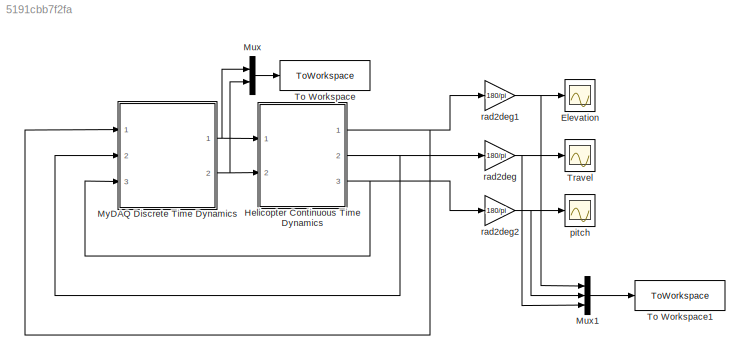
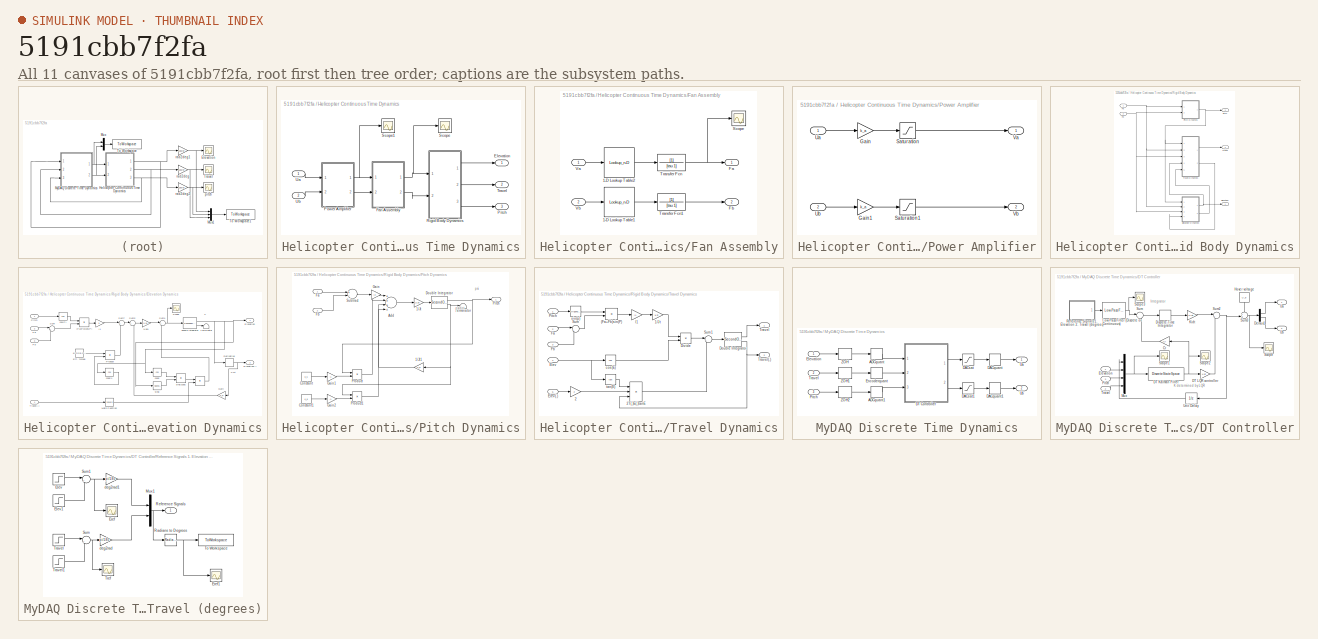
[diagram: thumbnail index - all 11 canvases of the model, root first then tree order]
MODEL slx_5191cbb7f2fa
KIND model
CONFIG AbsTol = auto
CONFIG EnableMultiTasking = on
CONFIG FixedStep = T
CONFIG MaxStep = auto
CONFIG MinStep = auto
CONFIG RelTol = 1e-5
CONFIG SampleTimeConstraint = Unconstrained
CONFIG Solver = ode1
CONFIG SolverName = ode1
CONFIG StartTime = 0.00
CONFIG StopTime = 60.00
WORKSPACE source: mxarray member
WORKSPACE A = [0 0 0 0 0 0 0 0 0 0 -30.3091533643 0.0017952 ... (36 elements, 6x6)]
WORKSPACE B = [0 0 0 0.221059242202 0.678925035361 0 0 0 0 0.221059242202 -0.678925035361 0]
WORKSPACE C = [1 0 0 0 0 0 0 0 1 0 0 0 ... (18 elements, 3x6)]
WORKSPACE D = [0 0 0 0 0 0]
WORKSPACE Qu = [1 0 0 1]
WORKSPACE Qx = [800 0 0 0 0 0 0 0 0 26688 0 0 ... (64 elements, 8x8)]
WORKSPACE Rv = [0.01 0 0 0 0.01 0 0 0 0.01]
WORKSPACE Rw = [1 0 0 0 0 0 0 1 0 0 0 0 ... (36 elements, 6x6)]
BLOCK [Scope] Elevation
  Floating = off
  NumInputPorts = 1
  Ports = [1]
  ScopeSpecificationString = Simulink.scopes.TimeScopeBlockCfg('CurrentConfiguration', extmgr.ConfigurationSet(extmgr.Configuration('Core','General UI',true),extmgr.Configuration('Core','Source UI',true),extmgr.Configuration('Sources','WiredSimulink',true,'DataLogging',true,'DataLoggingVariableName','elev','DataLoggingSaveFormat','StructureWithTime','DataLoggingDecimation','1','DataLoggingDecimateData',true),extmgr.Configurat...<+1684ch>
BLOCK [SubSystem] Helicopter Continuous Time Dynamics
  Ports = [2, 3]
  RequestExecContextInheritance = off
BLOCK [Outport] Helicopter Continuous Time Dynamics/Elevation
  IconDisplay = Port number
BLOCK [SubSystem] Helicopter Continuous Time Dynamics/Fan Assembly
  Ports = [2, 2]
  RequestExecContextInheritance = off
BLOCK [Lookup_n-D] Helicopter Continuous Time Dynamics/Fan Assembly/1-D Lookup Table1
  BreakpointsForDimension1 = V_ab
  InternalRulePriority = Speed
  NumberOfTableDimensions = 1
  Ports = [1, 1]
  RndMeth = Simplest
  Table = Fss_ab
BLOCK [Lookup_n-D] Helicopter Continuous Time Dynamics/Fan Assembly/1-D Lookup Table2
  BreakpointsForDimension1 = V_ab
  InternalRulePriority = Speed
  NumberOfTableDimensions = 1
  Ports = [1, 1]
  RndMeth = Simplest
  Table = Fss_ab
BLOCK [Outport] Helicopter Continuous Time Dynamics/Fan Assembly/Fa
  IconDisplay = Port number
BLOCK [Outport] Helicopter Continuous Time Dynamics/Fan Assembly/Fb
  IconDisplay = Port number
  Port = 2
BLOCK [Scope] Helicopter Continuous Time Dynamics/Fan Assembly/Scope
  Floating = off
  NumInputPorts = 1
  Ports = [1]
  ScopeSpecificationString = Simulink.scopes.TimeScopeBlockCfg('CurrentConfiguration', extmgr.ConfigurationSet(extmgr.Configuration('Core','General UI',true),extmgr.Configuration('Core','Source UI',true),extmgr.Configuration('Sources','WiredSimulink',true,'DataLoggingVariableName','ScopeData1'),extmgr.Configuration('Visuals','Time Domain',true,'SerializedDisplays',{struct('MinYLimReal','-0.01466','MaxYLimReal','0.13191','YLab...<+1371ch>
BLOCK [TransferFcn] Helicopter Continuous Time Dynamics/Fan Assembly/Transfer Fcn
  Denominator = [tau 1]
BLOCK [TransferFcn] Helicopter Continuous Time Dynamics/Fan Assembly/Transfer Fcn1
  Denominator = [tau 1]
BLOCK [Inport] Helicopter Continuous Time Dynamics/Fan Assembly/Va
  IconDisplay = Port number
BLOCK [Inport] Helicopter Continuous Time Dynamics/Fan Assembly/Vb
  IconDisplay = Port number
  Port = 2
BLOCK [Outport] Helicopter Continuous Time Dynamics/Pitch
  IconDisplay = Port number
  Port = 3
BLOCK [SubSystem] Helicopter Continuous Time Dynamics/Power Amplifier
  Ports = [2, 2]
  RequestExecContextInheritance = off
BLOCK [Gain] Helicopter Continuous Time Dynamics/Power Amplifier/Gain
  Gain = k_a
  OutDataTypeStr = Inherit: Inherit via internal rule
  ParamDataTypeStr = Inherit: Inherit via internal rule
  SaturateOnIntegerOverflow = off
BLOCK [Gain] Helicopter Continuous Time Dynamics/Power Amplifier/Gain1
  Gain = k_a
  OutDataTypeStr = Inherit: Inherit via internal rule
  ParamDataTypeStr = Inherit: Inherit via internal rule
  SaturateOnIntegerOverflow = off
BLOCK [Saturate] Helicopter Continuous Time Dynamics/Power Amplifier/Saturation
  InputPortMap = u0
  LowerLimit = amp_sat_l
  Ports = [1, 1]
  UpperLimit = amp_sat_u
BLOCK [Saturate] Helicopter Continuous Time Dynamics/Power Amplifier/Saturation1
  InputPortMap = u0
  LowerLimit = amp_sat_l
  Ports = [1, 1]
  UpperLimit = amp_sat_u
BLOCK [Inport] Helicopter Continuous Time Dynamics/Power Amplifier/Ua
  IconDisplay = Port number
BLOCK [Inport] Helicopter Continuous Time Dynamics/Power Amplifier/Ub
  IconDisplay = Port number
  Port = 2
BLOCK [Outport] Helicopter Continuous Time Dynamics/Power Amplifier/Va
  IconDisplay = Port number
BLOCK [Outport] Helicopter Continuous Time Dynamics/Power Amplifier/Vb
  IconDisplay = Port number
  Port = 2
BLOCK [SubSystem] Helicopter Continuous Time Dynamics/Rigid Body Dynamics
  Ports = [2, 3]
  RequestExecContextInheritance = off
BLOCK [Outport] Helicopter Continuous Time Dynamics/Rigid Body Dynamics/Elevation
  IconDisplay = Port number
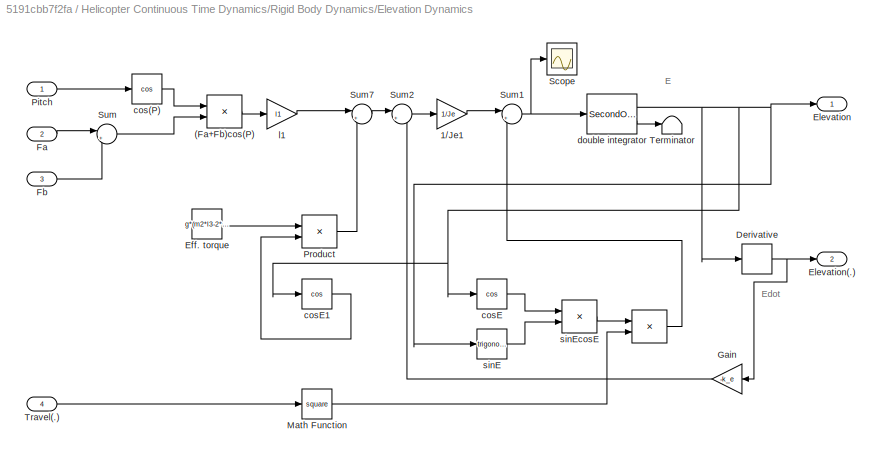
BLOCK [SubSystem] Helicopter Continuous Time Dynamics/Rigid Body Dynamics/Elevation Dynamics
  Ports = [4, 2]
  RequestExecContextInheritance = off
BLOCK [Product] Helicopter Continuous Time Dynamics/Rigid Body Dynamics/Elevation Dynamics/ 
  Ports = [2, 1]
BLOCK [Product] Helicopter Continuous Time Dynamics/Rigid Body Dynamics/Elevation Dynamics/(Fa+Fb)cos(P)
  Ports = [2, 1]
BLOCK [Gain] Helicopter Continuous Time Dynamics/Rigid Body Dynamics/Elevation Dynamics/1//Je1
  Gain = 1/Je
BLOCK [Derivative] Helicopter Continuous Time Dynamics/Rigid Body Dynamics/Elevation Dynamics/Derivative
BLOCK [Constant] Helicopter Continuous Time Dynamics/Rigid Body Dynamics/Elevation Dynamics/Eff. torque
  SampleTime = 0
  Value = g*(m2*l3-2*m1*l1)
BLOCK [Outport] Helicopter Continuous Time Dynamics/Rigid Body Dynamics/Elevation Dynamics/Elevation
  IconDisplay = Port number
BLOCK [Outport] Helicopter Continuous Time Dynamics/Rigid Body Dynamics/Elevation Dynamics/Elevation(.)
  IconDisplay = Port number
  Port = 2
BLOCK [Inport] Helicopter Continuous Time Dynamics/Rigid Body Dynamics/Elevation Dynamics/Fa
  IconDisplay = Port number
  Port = 2
BLOCK [Inport] Helicopter Continuous Time Dynamics/Rigid Body Dynamics/Elevation Dynamics/Fb
  IconDisplay = Port number
  Port = 3
BLOCK [Gain] Helicopter Continuous Time Dynamics/Rigid Body Dynamics/Elevation Dynamics/Gain
  Gain = -k_e
  OutDataTypeStr = Inherit: Inherit via internal rule
  ParamDataTypeStr = Inherit: Inherit via internal rule
  SaturateOnIntegerOverflow = off
BLOCK [Math] Helicopter Continuous Time Dynamics/Rigid Body Dynamics/Elevation Dynamics/Math Function
  Operator = square
  Ports = [1, 1]
BLOCK [Inport] Helicopter Continuous Time Dynamics/Rigid Body Dynamics/Elevation Dynamics/Pitch
  IconDisplay = Port number
BLOCK [Product] Helicopter Continuous Time Dynamics/Rigid Body Dynamics/Elevation Dynamics/Product
  Ports = [2, 1]
BLOCK [Scope] Helicopter Continuous Time Dynamics/Rigid Body Dynamics/Elevation Dynamics/Scope
  Floating = off
  NumInputPorts = 1
  Ports = [1]
  ScopeSpecificationString = Simulink.scopes.TimeScopeBlockCfg('CurrentConfiguration', extmgr.ConfigurationSet(extmgr.Configuration('Core','General UI',true),extmgr.Configuration('Core','Source UI',true),extmgr.Configuration('Sources','WiredSimulink',true,'DataLoggingVariableName','ScopeData2'),extmgr.Configuration('Visuals','Time Domain',true,'SerializedDisplays',{struct('MinYLimReal','-0.8852','MaxYLimReal','-0.21737','YLab...<+1390ch>
BLOCK [Sum] Helicopter Continuous Time Dynamics/Rigid Body Dynamics/Elevation Dynamics/Sum
  IconShape = round
  Inputs = |++
  Ports = [2, 1]
BLOCK [Sum] Helicopter Continuous Time Dynamics/Rigid Body Dynamics/Elevation Dynamics/Sum1
  IconShape = round
  Inputs = |+-
  Ports = [2, 1]
BLOCK [Sum] Helicopter Continuous Time Dynamics/Rigid Body Dynamics/Elevation Dynamics/Sum2
  IconShape = round
  Inputs = |++
  Ports = [2, 1]
BLOCK [Sum] Helicopter Continuous Time Dynamics/Rigid Body Dynamics/Elevation Dynamics/Sum7
  IconShape = round
  Inputs = |++
  Ports = [2, 1]
BLOCK [Terminator] Helicopter Continuous Time Dynamics/Rigid Body Dynamics/Elevation Dynamics/Terminator
BLOCK [Inport] Helicopter Continuous Time Dynamics/Rigid Body Dynamics/Elevation Dynamics/Travel(.)
  IconDisplay = Port number
  Port = 4
BLOCK [Trigonometry] Helicopter Continuous Time Dynamics/Rigid Body Dynamics/Elevation Dynamics/cos(P)
  Operator = cos
  Ports = [1, 1]
BLOCK [Trigonometry] Helicopter Continuous Time Dynamics/Rigid Body Dynamics/Elevation Dynamics/cosE
  Operator = cos
  Ports = [1, 1]
BLOCK [Trigonometry] Helicopter Continuous Time Dynamics/Rigid Body Dynamics/Elevation Dynamics/cosE1
  Operator = cos
  Ports = [1, 1]
BLOCK [SecondOrderIntegrator] Helicopter Continuous Time Dynamics/Rigid Body Dynamics/Elevation Dynamics/double integrator
  ICX = e_lim_l
  LimitDXDT = on
  LimitX = on
  LowerLimitDXDT = -2*pi
  LowerLimitX = e_lim_l
  Ports = [1, 2]
  UpperLimitDXDT = 2*pi
  UpperLimitX = e_lim_u
BLOCK [Gain] Helicopter Continuous Time Dynamics/Rigid Body Dynamics/Elevation Dynamics/l1
  Gain = l1
BLOCK [Trigonometry] Helicopter Continuous Time Dynamics/Rigid Body Dynamics/Elevation Dynamics/sinE
  Ports = [1, 1]
BLOCK [Product] Helicopter Continuous Time Dynamics/Rigid Body Dynamics/Elevation Dynamics/sinEcosE
  Ports = [2, 1]
BLOCK [Inport] Helicopter Continuous Time Dynamics/Rigid Body Dynamics/Fa
  IconDisplay = Port number
BLOCK [Inport] Helicopter Continuous Time Dynamics/Rigid Body Dynamics/Fb
  IconDisplay = Port number
  Port = 2
BLOCK [Outport] Helicopter Continuous Time Dynamics/Rigid Body Dynamics/Pitch
  IconDisplay = Port number
  Port = 3
BLOCK [SubSystem] Helicopter Continuous Time Dynamics/Rigid Body Dynamics/Pitch Dynamics
  Ports = [2, 1]
  RequestExecContextInheritance = off
BLOCK [Gain] Helicopter Continuous Time Dynamics/Rigid Body Dynamics/Pitch Dynamics/1//Jt
  Gain = 1/Jp
BLOCK [Gain] Helicopter Continuous Time Dynamics/Rigid Body Dynamics/Pitch Dynamics/1//Jt1
  Gain = -k_e
BLOCK [Sum] Helicopter Continuous Time Dynamics/Rigid Body Dynamics/Pitch Dynamics/Add
  InputSameDT = off
  Inputs = ++++
  OutDataTypeStr = Inherit: Inherit via internal rule
  Ports = [4, 1]
  SaturateOnIntegerOverflow = off
BLOCK [Constant] Helicopter Continuous Time Dynamics/Rigid Body Dynamics/Pitch Dynamics/Constant
  SampleTime = 0
  Value = k_s
BLOCK [Constant] Helicopter Continuous Time Dynamics/Rigid Body Dynamics/Pitch Dynamics/Constant1
  SampleTime = 0
  Value = k_d
BLOCK [SecondOrderIntegrator] Helicopter Continuous Time Dynamics/Rigid Body Dynamics/Pitch Dynamics/Double Integrator
  ICX = 0
  LimitX = on
  LowerLimitX = p_lim_l
  Ports = [1, 2]
  UpperLimitX = p_lim_u
BLOCK [Inport] Helicopter Continuous Time Dynamics/Rigid Body Dynamics/Pitch Dynamics/Fa
  IconDisplay = Port number
BLOCK [Inport] Helicopter Continuous Time Dynamics/Rigid Body Dynamics/Pitch Dynamics/Fb
  IconDisplay = Port number
  Port = 2
BLOCK [Gain] Helicopter Continuous Time Dynamics/Rigid Body Dynamics/Pitch Dynamics/Gain
  Gain = l2
  OutDataTypeStr = Inherit: Inherit via internal rule
  ParamDataTypeStr = Inherit: Inherit via internal rule
  SaturateOnIntegerOverflow = off
BLOCK [Gain] Helicopter Continuous Time Dynamics/Rigid Body Dynamics/Pitch Dynamics/Gain1
  Gain = -1
  OutDataTypeStr = Inherit: Inherit via internal rule
  ParamDataTypeStr = Inherit: Inherit via internal rule
  SaturateOnIntegerOverflow = off
BLOCK [Gain] Helicopter Continuous Time Dynamics/Rigid Body Dynamics/Pitch Dynamics/Gain2
  Gain = -1
  OutDataTypeStr = Inherit: Inherit via internal rule
  ParamDataTypeStr = Inherit: Inherit via internal rule
  SaturateOnIntegerOverflow = off
BLOCK [Outport] Helicopter Continuous Time Dynamics/Rigid Body Dynamics/Pitch Dynamics/Pitch
  IconDisplay = Port number
BLOCK [Product] Helicopter Continuous Time Dynamics/Rigid Body Dynamics/Pitch Dynamics/Product
  InputSameDT = off
  OutDataTypeStr = Inherit: Inherit via internal rule
  Ports = [2, 1]
  RndMeth = Floor
  SaturateOnIntegerOverflow = off
BLOCK [Product] Helicopter Continuous Time Dynamics/Rigid Body Dynamics/Pitch Dynamics/Product1
  InputSameDT = off
  OutDataTypeStr = Inherit: Inherit via internal rule
  Ports = [2, 1]
  RndMeth = Floor
  SaturateOnIntegerOverflow = off
BLOCK [Sum] Helicopter Continuous Time Dynamics/Rigid Body Dynamics/Pitch Dynamics/Subtract
  InputSameDT = off
  Inputs = +-
  OutDataTypeStr = Inherit: Inherit via internal rule
  Ports = [2, 1]
  SaturateOnIntegerOverflow = off
BLOCK [Terminator] Helicopter Continuous Time Dynamics/Rigid Body Dynamics/Pitch Dynamics/Terminator
BLOCK [Outport] Helicopter Continuous Time Dynamics/Rigid Body Dynamics/Travel
  IconDisplay = Port number
  Port = 2
BLOCK [SubSystem] Helicopter Continuous Time Dynamics/Rigid Body Dynamics/Travel Dynamics
  Ports = [5, 2]
  RequestExecContextInheritance = off
BLOCK [Product] Helicopter Continuous Time Dynamics/Rigid Body Dynamics/Travel Dynamics/(Fa+Fb)sin(P)
  Ports = [2, 1]
BLOCK [Gain] Helicopter Continuous Time Dynamics/Rigid Body Dynamics/Travel Dynamics/1//Jt
  Gain = 1/Jt
BLOCK [Gain] Helicopter Continuous Time Dynamics/Rigid Body Dynamics/Travel Dynamics/2
  Gain = 2
BLOCK [Product] Helicopter Continuous Time Dynamics/Rigid Body Dynamics/Travel Dynamics/2T(.)E(.)tanE
  Inputs = 3
  Ports = [3, 1]
BLOCK [Product] Helicopter Continuous Time Dynamics/Rigid Body Dynamics/Travel Dynamics/Divide
  InputSameDT = off
  Inputs = */
  OutDataTypeStr = Inherit: Inherit via internal rule
  Ports = [2, 1]
  RndMeth = Floor
  SaturateOnIntegerOverflow = off
BLOCK [SecondOrderIntegrator] Helicopter Continuous Time Dynamics/Rigid Body Dynamics/Travel Dynamics/Double Integrator
  LimitDXDT = on
  LowerLimitDXDT = -2
  LowerLimitX = 0
  Ports = [1, 2]
  UpperLimitDXDT = 2
  UpperLimitX = 1
BLOCK [Inport] Helicopter Continuous Time Dynamics/Rigid Body Dynamics/Travel Dynamics/Elev
  IconDisplay = Port number
  Port = 4
BLOCK [Inport] Helicopter Continuous Time Dynamics/Rigid Body Dynamics/Travel Dynamics/Elev(.)
  IconDisplay = Port number
  Port = 5
BLOCK [Inport] Helicopter Continuous Time Dynamics/Rigid Body Dynamics/Travel Dynamics/Fa
  IconDisplay = Port number
  Port = 2
BLOCK [Inport] Helicopter Continuous Time Dynamics/Rigid Body Dynamics/Travel Dynamics/Fb
  IconDisplay = Port number
  Port = 3
BLOCK [Inport] Helicopter Continuous Time Dynamics/Rigid Body Dynamics/Travel Dynamics/Pitch
  IconDisplay = Port number
BLOCK [Sum] Helicopter Continuous Time Dynamics/Rigid Body Dynamics/Travel Dynamics/Sum
  IconShape = round
  Inputs = |++
  Ports = [2, 1]
BLOCK [Sum] Helicopter Continuous Time Dynamics/Rigid Body Dynamics/Travel Dynamics/Sum1
  IconShape = round
  Inputs = |-+
  Ports = [2, 1]
BLOCK [Outport] Helicopter Continuous Time Dynamics/Rigid Body Dynamics/Travel Dynamics/Travel
  IconDisplay = Port number
BLOCK [Outport] Helicopter Continuous Time Dynamics/Rigid Body Dynamics/Travel Dynamics/Travel(.)
  IconDisplay = Port number
  Port = 2
BLOCK [Trigonometry] Helicopter Continuous Time Dynamics/Rigid Body Dynamics/Travel Dynamics/cos(E)
  Operator = cos
  Ports = [1, 1]
BLOCK [Gain] Helicopter Continuous Time Dynamics/Rigid Body Dynamics/Travel Dynamics/l1
  Gain = l1
BLOCK [Trigonometry] Helicopter Continuous Time Dynamics/Rigid Body Dynamics/Travel Dynamics/sin(p)
  Ports = [1, 1]
BLOCK [Trigonometry] Helicopter Continuous Time Dynamics/Rigid Body Dynamics/Travel Dynamics/tan(E)
  Operator = tan
  Ports = [1, 1]
BLOCK [Scope] Helicopter Continuous Time Dynamics/Scope
  Floating = off
  NumInputPorts = 1
  Ports = [1]
  ScopeSpecificationString = Simulink.scopes.TimeScopeBlockCfg('CurrentConfiguration', extmgr.ConfigurationSet(extmgr.Configuration('Core','General UI',true),extmgr.Configuration('Core','Source UI',true),extmgr.Configuration('Sources','WiredSimulink',true,'DataLoggingVariableName','ScopeData1'),extmgr.Configuration('Visuals','Time Domain',true,'SerializedDisplays',{struct('MinYLimReal','-0.01801','MaxYLimReal','0.16213','YLab...<+1402ch>
BLOCK [Scope] Helicopter Continuous Time Dynamics/Scope1
  Floating = off
  NumInputPorts = 1
  Ports = [1]
  ScopeSpecificationString = Simulink.scopes.TimeScopeBlockCfg('CurrentConfiguration', extmgr.ConfigurationSet(extmgr.Configuration('Core','General UI',true),extmgr.Configuration('Core','Source UI',true),extmgr.Configuration('Sources','WiredSimulink',true,'DataLoggingVariableName','ScopeData2'),extmgr.Configuration('Visuals','Time Domain',true,'SerializedDisplays',{struct('MinYLimReal','-1.25','MaxYLimReal','11.25','YLabelRea...<+1391ch>
BLOCK [Outport] Helicopter Continuous Time Dynamics/Travel
  IconDisplay = Port number
  Port = 2
BLOCK [Inport] Helicopter Continuous Time Dynamics/Ua
  IconDisplay = Port number
BLOCK [Inport] Helicopter Continuous Time Dynamics/Ub
  IconDisplay = Port number
  Port = 2
BLOCK [Mux] Mux
  DisplayOption = bar
  Inputs = 2
  Ports = [2, 1]
BLOCK [Mux] Mux1
  DisplayOption = bar
  Inputs = 3
  Ports = [3, 1]
BLOCK [SubSystem] MyDAQ Discrete Time Dynamics
  Ports = [3, 2]
  RequestExecContextInheritance = off
BLOCK [Quantizer] MyDAQ Discrete Time Dynamics/ADCquant
  QuantizationInterval = ADC_Vres
  SampleTime = T
BLOCK [Quantizer] MyDAQ Discrete Time Dynamics/ADCquant1
  QuantizationInterval = ADC_Vres
  SampleTime = T
BLOCK [Quantizer] MyDAQ Discrete Time Dynamics/DACquant
  QuantizationInterval = DAC_Vres
  SampleTime = T
BLOCK [Quantizer] MyDAQ Discrete Time Dynamics/DACquant1
  QuantizationInterval = DAC_Vres
  SampleTime = T
BLOCK [Saturate] MyDAQ Discrete Time Dynamics/DACsat
  InputPortMap = u0
  LowerLimit = DAC_lim_l
  Ports = [1, 1]
  SampleTime = T
  UpperLimit = DAC_lim_u
BLOCK [Saturate] MyDAQ Discrete Time Dynamics/DACsat1
  InputPortMap = u0
  LowerLimit = DAC_lim_l
  Ports = [1, 1]
  SampleTime = T
  UpperLimit = DAC_lim_u
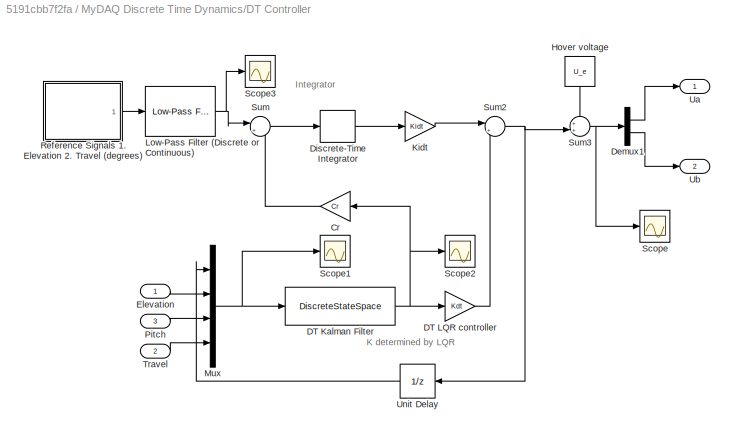
BLOCK [SubSystem] MyDAQ Discrete Time Dynamics/DT Controller
  Ports = [3, 2]
  RequestExecContextInheritance = off
BLOCK [Gain] MyDAQ Discrete Time Dynamics/DT Controller/Cr
  Gain = Cr
  Multiplication = Matrix(K*u)
  OutDataTypeStr = Inherit: Inherit via internal rule
  ParamDataTypeStr = Inherit: Inherit via internal rule
  SaturateOnIntegerOverflow = off
BLOCK [DiscreteStateSpace] MyDAQ Discrete Time Dynamics/DT Controller/DT Kalman Filter
  A = kdfilt.a
  B = kdfilt.b
  C = kdfilt.c(size(C,1)+1:end,:)
  D = kdfilt.d(size(C,1)+1:end,:)
  InitialCondition = [e_lim_l; 0; 0; 0; 0; 0]
  SampleTime = T
BLOCK [Gain] MyDAQ Discrete Time Dynamics/DT Controller/DT LQR controller
  Gain = Kdt
  Multiplication = Matrix(K*u)
  OutDataTypeStr = Inherit: Inherit via internal rule
  ParamDataTypeStr = Inherit: Inherit via internal rule
  SaturateOnIntegerOverflow = off
BLOCK [Demux] MyDAQ Discrete Time Dynamics/DT Controller/Demux1
  DisplayOption = bar
  Outputs = 2
  Ports = [1, 2]
BLOCK [DiscreteIntegrator] MyDAQ Discrete Time Dynamics/DT Controller/Discrete-Time Integrator
  ICPrevOutput = DiscIntNeverNeededParam
  ICPrevScaledInput = DiscIntNeverNeededParam
  Ports = [1, 1]
  SampleTime = T
BLOCK [Inport] MyDAQ Discrete Time Dynamics/DT Controller/Elevation
  IconDisplay = Port number
BLOCK [Constant] MyDAQ Discrete Time Dynamics/DT Controller/Hover voltage
  SampleTime = T
  Value = U_e
BLOCK [Gain] MyDAQ Discrete Time Dynamics/DT Controller/Kidt
  Gain = Kidt
  Multiplication = Matrix(K*u)
  OutDataTypeStr = Inherit: Inherit via internal rule
  ParamDataTypeStr = Inherit: Inherit via internal rule
  SaturateOnIntegerOverflow = off
BLOCK [Reference] MyDAQ Discrete Time Dynamics/DT Controller/Low-Pass Filter (Discrete or Continuous)  REF=eeGeneralControl/Low-Pass Filter
(Discrete or Continuous)
  Ports = [1, 1]
  SourceBlock = eeGeneralControl/Low-Pass Filter\n(Discrete or Continuous)
  SourceProductBaseCode = PS
  SourceType = Low-Pass Filter (Discrete or Continuous)
BLOCK [Mux] MyDAQ Discrete Time Dynamics/DT Controller/Mux
  DisplayOption = bar
  Ports = [4, 1]
BLOCK [Inport] MyDAQ Discrete Time Dynamics/DT Controller/Pitch
  IconDisplay = Port number
  Port = 3
BLOCK [SubSystem] MyDAQ Discrete Time Dynamics/DT Controller/Reference Signals 1. Elevation 2. Travel (degrees)
  Ports = [0, 1]
  RequestExecContextInheritance = off
BLOCK [Step] MyDAQ Discrete Time Dynamics/DT Controller/Reference Signals 1. Elevation 2. Travel (degrees)/Elev
  After = 0
  SampleTime = T
  Time = 0
BLOCK [Step] MyDAQ Discrete Time Dynamics/DT Controller/Reference Signals 1. Elevation 2. Travel (degrees)/Elev1
  After = 10
  SampleTime = T
  Time = 30
BLOCK [Scope] MyDAQ Discrete Time Dynamics/DT Controller/Reference Signals 1. Elevation 2. Travel (degrees)/Eref
  Floating = off
  NumInputPorts = 1
  Ports = [1]
  ScopeSpecificationString = Simulink.scopes.TimeScopeBlockCfg('CurrentConfiguration', extmgr.ConfigurationSet(extmgr.Configuration('Core','General UI',true),extmgr.Configuration('Core','Source UI',true),extmgr.Configuration('Sources','WiredSimulink',true,'DataLogging',true,'DataLoggingVariableName','eref','DataLoggingSaveFormat','StructureWithTime','DataLoggingDecimation','1','DataLoggingDecimateData',true),extmgr.Configurat...<+1676ch>
BLOCK [Scope] MyDAQ Discrete Time Dynamics/DT Controller/Reference Signals 1. Elevation 2. Travel (degrees)/Eref1
  Floating = off
  NumInputPorts = 1
  Ports = [1]
  ScopeSpecificationString = Simulink.scopes.TimeScopeBlockCfg('CurrentConfiguration', extmgr.ConfigurationSet(extmgr.Configuration('Core','General UI',true),extmgr.Configuration('Core','Source UI',true),extmgr.Configuration('Sources','WiredSimulink',true,'DataLogging',true,'DataLoggingVariableName','eref1','DataLoggingSaveFormat','StructureWithTime','DataLoggingDecimation','1','DataLoggingDecimateData',true),extmgr.Configura...<+1716ch>
BLOCK [Mux] MyDAQ Discrete Time Dynamics/DT Controller/Reference Signals 1. Elevation 2. Travel (degrees)/Mux1
  DisplayOption = bar
  Inputs = 2
  Ports = [2, 1]
BLOCK [Reference] MyDAQ Discrete Time Dynamics/DT Controller/Reference Signals 1. Elevation 2. Travel (degrees)/Radians to Degrees  REF=simulink_extras/Transformations/Radians
to Degrees
  Ports = [1, 1]
  SourceBlock = simulink_extras/Transformations/Radians\nto Degrees
  SourceProductBaseCode = SL
  SourceType = RadiansToDegrees
BLOCK [Outport] MyDAQ Discrete Time Dynamics/DT Controller/Reference Signals 1. Elevation 2. Travel (degrees)/Reference Signals
  IconDisplay = Port number
BLOCK [Sum] MyDAQ Discrete Time Dynamics/DT Controller/Reference Signals 1. Elevation 2. Travel (degrees)/Sum
  IconShape = round
  Inputs = |++
  Ports = [2, 1]
BLOCK [Sum] MyDAQ Discrete Time Dynamics/DT Controller/Reference Signals 1. Elevation 2. Travel (degrees)/Sum1
  IconShape = round
  Inputs = |++
  Ports = [2, 1]
  SampleTime = T
BLOCK [ToWorkspace] MyDAQ Discrete Time Dynamics/DT Controller/Reference Signals 1. Elevation 2. Travel (degrees)/To Workspace
  FixptAsFi = on
  MaxDataPoints = inf
  Ports = [1]
  SampleTime = -1
  VariableName = refSignals
BLOCK [Step] MyDAQ Discrete Time Dynamics/DT Controller/Reference Signals 1. Elevation 2. Travel (degrees)/Travel
  After = 180
  SampleTime = T
  Time = 10
BLOCK [Step] MyDAQ Discrete Time Dynamics/DT Controller/Reference Signals 1. Elevation 2. Travel (degrees)/Travel1
  After = -180
  SampleTime = T
  Time = 40
BLOCK [Scope] MyDAQ Discrete Time Dynamics/DT Controller/Reference Signals 1. Elevation 2. Travel (degrees)/Tref
  Floating = off
  NumInputPorts = 1
  Ports = [1]
  ScopeSpecificationString = Simulink.scopes.TimeScopeBlockCfg('CurrentConfiguration', extmgr.ConfigurationSet(extmgr.Configuration('Core','General UI',true),extmgr.Configuration('Core','Source UI',true),extmgr.Configuration('Sources','WiredSimulink',true,'DataLogging',true,'DataLoggingVariableName','tref','DataLoggingSaveFormat','StructureWithTime','DataLoggingDecimation','1','DataLoggingDecimateData',true),extmgr.Configurat...<+1656ch>
BLOCK [Gain] MyDAQ Discrete Time Dynamics/DT Controller/Reference Signals 1. Elevation 2. Travel (degrees)/deg2rad
  Gain = pi/180
BLOCK [Gain] MyDAQ Discrete Time Dynamics/DT Controller/Reference Signals 1. Elevation 2. Travel (degrees)/deg2rad1
  Gain = pi/180
BLOCK [Scope] MyDAQ Discrete Time Dynamics/DT Controller/Scope
  Floating = off
  NumInputPorts = 1
  Ports = [1]
  ScopeSpecificationString = Simulink.scopes.TimeScopeBlockCfg('CurrentConfiguration', extmgr.ConfigurationSet(extmgr.Configuration('Core','General UI',true),extmgr.Configuration('Core','Source UI',true),extmgr.Configuration('Sources','WiredSimulink',true,'DataLoggingVariableName','ScopeData3'),extmgr.Configuration('Visuals','Time Domain',true,'SerializedDisplays',{struct('MinYLimReal','-13643602662285996746479503409152.00000...<+1620ch>
BLOCK [Scope] MyDAQ Discrete Time Dynamics/DT Controller/Scope1
  Floating = off
  NumInputPorts = 1
  Ports = [1]
  ScopeSpecificationString = Simulink.scopes.TimeScopeBlockCfg('CurrentConfiguration', extmgr.ConfigurationSet(extmgr.Configuration('Core','General UI',true),extmgr.Configuration('Core','Source UI',true),extmgr.Configuration('Sources','WiredSimulink',true,'DataLoggingVariableName','ScopeData4'),extmgr.Configuration('Visuals','Time Domain',true,'SerializedDisplays',{struct('MinYLimReal','-6209047466272959951386020369399808.000...<+1712ch>
BLOCK [Scope] MyDAQ Discrete Time Dynamics/DT Controller/Scope2
  Floating = off
  NumInputPorts = 1
  Ports = [1]
  ScopeSpecificationString = Simulink.scopes.TimeScopeBlockCfg('CurrentConfiguration', extmgr.ConfigurationSet(extmgr.Configuration('Core','General UI',true),extmgr.Configuration('Core','Source UI',true),extmgr.Configuration('Sources','WiredSimulink',true,'DataLoggingVariableName','ScopeData5'),extmgr.Configuration('Visuals','Time Domain',true,'SerializedDisplays',{struct('MinYLimReal','-1.38562','MaxYLimReal','3.74281','YLab...<+1509ch>
BLOCK [Scope] MyDAQ Discrete Time Dynamics/DT Controller/Scope3
  Floating = off
  NumInputPorts = 1
  Ports = [1]
  ScopeSpecificationString = Simulink.scopes.TimeScopeBlockCfg('CurrentConfiguration', extmgr.ConfigurationSet(extmgr.Configuration('Core','General UI',true),extmgr.Configuration('Core','Source UI',true),extmgr.Configuration('Sources','WiredSimulink',true,'DataLoggingVariableName','ScopeData1'),extmgr.Configuration('Visuals','Time Domain',true,'SerializedDisplays',{struct('MinYLimReal','-1935213923368754383432014343700480.000...<+1776ch>
BLOCK [Sum] MyDAQ Discrete Time Dynamics/DT Controller/Sum
  IconShape = round
  InputSameDT = off
  Inputs = |+-
  OutDataTypeStr = Inherit: Inherit via internal rule
  Ports = [2, 1]
  SampleTime = T
  SaturateOnIntegerOverflow = off
BLOCK [Sum] MyDAQ Discrete Time Dynamics/DT Controller/Sum2
  IconShape = round
  InputSameDT = off
  Inputs = |+-
  OutDataTypeStr = Inherit: Inherit via internal rule
  Ports = [2, 1]
  SampleTime = T
  SaturateOnIntegerOverflow = off
BLOCK [Sum] MyDAQ Discrete Time Dynamics/DT Controller/Sum3
  IconShape = round
  InputSameDT = off
  Inputs = ++|
  OutDataTypeStr = Inherit: Inherit via internal rule
  Ports = [2, 1]
  SampleTime = T
  SaturateOnIntegerOverflow = off
BLOCK [Inport] MyDAQ Discrete Time Dynamics/DT Controller/Travel
  IconDisplay = Port number
  Port = 2
BLOCK [Outport] MyDAQ Discrete Time Dynamics/DT Controller/Ua
  IconDisplay = Port number
BLOCK [Outport] MyDAQ Discrete Time Dynamics/DT Controller/Ub
  IconDisplay = Port number
  Port = 2
BLOCK [UnitDelay] MyDAQ Discrete Time Dynamics/DT Controller/Unit Delay
  HasFrameUpgradeWarning = on
  SampleTime = T
BLOCK [Inport] MyDAQ Discrete Time Dynamics/Elevation
  IconDisplay = Port number
BLOCK [Quantizer] MyDAQ Discrete Time Dynamics/Encoderquant
  QuantizationInterval = Encoder_res
  SampleTime = T
BLOCK [Inport] MyDAQ Discrete Time Dynamics/Pitch
  IconDisplay = Port number
  Port = 3
BLOCK [Inport] MyDAQ Discrete Time Dynamics/Travel
  IconDisplay = Port number
  Port = 2
BLOCK [Outport] MyDAQ Discrete Time Dynamics/Ua
  IconDisplay = Port number
BLOCK [Outport] MyDAQ Discrete Time Dynamics/Ub
  IconDisplay = Port number
  Port = 2
BLOCK [ZeroOrderHold] MyDAQ Discrete Time Dynamics/ZOH
  SampleTime = T
BLOCK [ZeroOrderHold] MyDAQ Discrete Time Dynamics/ZOH1
  SampleTime = T
BLOCK [ZeroOrderHold] MyDAQ Discrete Time Dynamics/ZOH2
  SampleTime = T
BLOCK [ToWorkspace] To Workspace
  FixptAsFi = on
  MaxDataPoints = inf
  Ports = [1]
  SampleTime = -1
  VariableName = controlSignals
BLOCK [ToWorkspace] To Workspace1
  FixptAsFi = on
  MaxDataPoints = inf
  Ports = [1]
  SampleTime = -1
  VariableName = outputs
BLOCK [Scope] Travel
  Floating = off
  NumInputPorts = 1
  Ports = [1]
  ScopeSpecificationString = Simulink.scopes.TimeScopeBlockCfg('CurrentConfiguration', extmgr.ConfigurationSet(extmgr.Configuration('Core','General UI',true),extmgr.Configuration('Core','Source UI',true),extmgr.Configuration('Sources','WiredSimulink',true,'DataLogging',true,'DataLoggingVariableName','trav','DataLoggingSaveFormat','StructureWithTime','DataLoggingDecimation','1','DataLoggingDecimateData',true),extmgr.Configurat...<+1680ch>
BLOCK [Scope] pitch
  Floating = off
  NumInputPorts = 1
  Ports = [1]
  ScopeSpecificationString = Simulink.scopes.TimeScopeBlockCfg('CurrentConfiguration', extmgr.ConfigurationSet(extmgr.Configuration('Core','General UI',true),extmgr.Configuration('Core','Source UI',true),extmgr.Configuration('Sources','WiredSimulink',true,'DataLogging',true,'DataLoggingVariableName','pitch','DataLoggingSaveFormat','StructureWithTime','DataLoggingDecimation','1','DataLoggingDecimateData',true),extmgr.Configura...<+1686ch>
BLOCK [Gain] rad2deg
  Gain = 180/pi
BLOCK [Gain] rad2deg1
  Gain = 180/pi
BLOCK [Gain] rad2deg2
  Gain = 180/pi
ANNOTATION Helicopter Continuous Time Dynamics/Rigid Body Dynamics/Elevation Dynamics: E
ANNOTATION Helicopter Continuous Time Dynamics/Rigid Body Dynamics/Elevation Dynamics: Edot
ANNOTATION Helicopter Continuous Time Dynamics/Rigid Body Dynamics/Pitch Dynamics: psi
ANNOTATION Helicopter Continuous Time Dynamics/Rigid Body Dynamics/Pitch Dynamics: psidot
ANNOTATION MyDAQ Discrete Time Dynamics/DT Controller: Integrator
ANNOTATION MyDAQ Discrete Time Dynamics/DT Controller: K determined by LQR
LINE Helicopter Continuous Time Dynamics/Fan Assembly/1-D Lookup Table1:1 -> Helicopter Continuous Time Dynamics/Fan Assembly/Transfer Fcn1:1
LINE Helicopter Continuous Time Dynamics/Fan Assembly/1-D Lookup Table2:1 -> Helicopter Continuous Time Dynamics/Fan Assembly/Transfer Fcn:1
LINE Helicopter Continuous Time Dynamics/Fan Assembly/Transfer Fcn1:1 -> Helicopter Continuous Time Dynamics/Fan Assembly/Fb:1
NET Helicopter Continuous Time Dynamics/Fan Assembly/Transfer Fcn:1 -> Helicopter Continuous Time Dynamics/Fan Assembly/Fa:1, Helicopter Continuous Time Dynamics/Fan Assembly/Scope:1
LINE Helicopter Continuous Time Dynamics/Fan Assembly/Va:1 -> Helicopter Continuous Time Dynamics/Fan Assembly/1-D Lookup Table2:1
LINE Helicopter Continuous Time Dynamics/Fan Assembly/Vb:1 -> Helicopter Continuous Time Dynamics/Fan Assembly/1-D Lookup Table1:1
NET Helicopter Continuous Time Dynamics/Fan Assembly:1 -> Helicopter Continuous Time Dynamics/Rigid Body Dynamics:1, Helicopter Continuous Time Dynamics/Scope:1
LINE Helicopter Continuous Time Dynamics/Fan Assembly:2 -> Helicopter Continuous Time Dynamics/Rigid Body Dynamics:2
LINE Helicopter Continuous Time Dynamics/Power Amplifier/Gain1:1 -> Helicopter Continuous Time Dynamics/Power Amplifier/Saturation1:1
LINE Helicopter Continuous Time Dynamics/Power Amplifier/Gain:1 -> Helicopter Continuous Time Dynamics/Power Amplifier/Saturation:1
LINE Helicopter Continuous Time Dynamics/Power Amplifier/Saturation1:1 -> Helicopter Continuous Time Dynamics/Power Amplifier/Vb:1
LINE Helicopter Continuous Time Dynamics/Power Amplifier/Saturation:1 -> Helicopter Continuous Time Dynamics/Power Amplifier/Va:1
LINE Helicopter Continuous Time Dynamics/Power Amplifier/Ua:1 -> Helicopter Continuous Time Dynamics/Power Amplifier/Gain:1
LINE Helicopter Continuous Time Dynamics/Power Amplifier/Ub:1 -> Helicopter Continuous Time Dynamics/Power Amplifier/Gain1:1
NET Helicopter Continuous Time Dynamics/Power Amplifier:1 -> Helicopter Continuous Time Dynamics/Fan Assembly:1, Helicopter Continuous Time Dynamics/Scope1:1
LINE Helicopter Continuous Time Dynamics/Power Amplifier:2 -> Helicopter Continuous Time Dynamics/Fan Assembly:2
LINE Helicopter Continuous Time Dynamics/Rigid Body Dynamics/Elevation Dynamics/ :1 -> Helicopter Continuous Time Dynamics/Rigid Body Dynamics/Elevation Dynamics/Sum1:2
LINE Helicopter Continuous Time Dynamics/Rigid Body Dynamics/Elevation Dynamics/(Fa+Fb)cos(P):1 -> Helicopter Continuous Time Dynamics/Rigid Body Dynamics/Elevation Dynamics/l1:1
LINE Helicopter Continuous Time Dynamics/Rigid Body Dynamics/Elevation Dynamics/1//Je1:1 -> Helicopter Continuous Time Dynamics/Rigid Body Dynamics/Elevation Dynamics/Sum1:1
NET Helicopter Continuous Time Dynamics/Rigid Body Dynamics/Elevation Dynamics/Derivative:1 -> Helicopter Continuous Time Dynamics/Rigid Body Dynamics/Elevation Dynamics/Elevation(.):1, Helicopter Continuous Time Dynamics/Rigid Body Dynamics/Elevation Dynamics/Gain:1
LINE Helicopter Continuous Time Dynamics/Rigid Body Dynamics/Elevation Dynamics/Eff. torque:1 -> Helicopter Continuous Time Dynamics/Rigid Body Dynamics/Elevation Dynamics/Product:1
LINE Helicopter Continuous Time Dynamics/Rigid Body Dynamics/Elevation Dynamics/Fa:1 -> Helicopter Continuous Time Dynamics/Rigid Body Dynamics/Elevation Dynamics/Sum:1
LINE Helicopter Continuous Time Dynamics/Rigid Body Dynamics/Elevation Dynamics/Fb:1 -> Helicopter Continuous Time Dynamics/Rigid Body Dynamics/Elevation Dynamics/Sum:2
LINE Helicopter Continuous Time Dynamics/Rigid Body Dynamics/Elevation Dynamics/Gain:1 -> Helicopter Continuous Time Dynamics/Rigid Body Dynamics/Elevation Dynamics/Sum2:2
LINE Helicopter Continuous Time Dynamics/Rigid Body Dynamics/Elevation Dynamics/Math Function:1 -> Helicopter Continuous Time Dynamics/Rigid Body Dynamics/Elevation Dynamics/ :2
LINE Helicopter Continuous Time Dynamics/Rigid Body Dynamics/Elevation Dynamics/Pitch:1 -> Helicopter Continuous Time Dynamics/Rigid Body Dynamics/Elevation Dynamics/cos(P):1
LINE Helicopter Continuous Time Dynamics/Rigid Body Dynamics/Elevation Dynamics/Product:1 -> Helicopter Continuous Time Dynamics/Rigid Body Dynamics/Elevation Dynamics/Sum7:2
NET Helicopter Continuous Time Dynamics/Rigid Body Dynamics/Elevation Dynamics/Sum1:1 -> Helicopter Continuous Time Dynamics/Rigid Body Dynamics/Elevation Dynamics/Scope:1, Helicopter Continuous Time Dynamics/Rigid Body Dynamics/Elevation Dynamics/double integrator:1
LINE Helicopter Continuous Time Dynamics/Rigid Body Dynamics/Elevation Dynamics/Sum2:1 -> Helicopter Continuous Time Dynamics/Rigid Body Dynamics/Elevation Dynamics/1//Je1:1
LINE Helicopter Continuous Time Dynamics/Rigid Body Dynamics/Elevation Dynamics/Sum7:1 -> Helicopter Continuous Time Dynamics/Rigid Body Dynamics/Elevation Dynamics/Sum2:1
LINE Helicopter Continuous Time Dynamics/Rigid Body Dynamics/Elevation Dynamics/Sum:1 -> Helicopter Continuous Time Dynamics/Rigid Body Dynamics/Elevation Dynamics/(Fa+Fb)cos(P):2
LINE Helicopter Continuous Time Dynamics/Rigid Body Dynamics/Elevation Dynamics/Travel(.):1 -> Helicopter Continuous Time Dynamics/Rigid Body Dynamics/Elevation Dynamics/Math Function:1
LINE Helicopter Continuous Time Dynamics/Rigid Body Dynamics/Elevation Dynamics/cos(P):1 -> Helicopter Continuous Time Dynamics/Rigid Body Dynamics/Elevation Dynamics/(Fa+Fb)cos(P):1
LINE Helicopter Continuous Time Dynamics/Rigid Body Dynamics/Elevation Dynamics/cosE1:1 -> Helicopter Continuous Time Dynamics/Rigid Body Dynamics/Elevation Dynamics/Product:2
LINE Helicopter Continuous Time Dynamics/Rigid Body Dynamics/Elevation Dynamics/cosE:1 -> Helicopter Continuous Time Dynamics/Rigid Body Dynamics/Elevation Dynamics/sinEcosE:1
NET Helicopter Continuous Time Dynamics/Rigid Body Dynamics/Elevation Dynamics/double integrator:1 -> Helicopter Continuous Time Dynamics/Rigid Body Dynamics/Elevation Dynamics/Derivative:1, Helicopter Continuous Time Dynamics/Rigid Body Dynamics/Elevation Dynamics/Elevation:1, Helicopter Continuous Time Dynamics/Rigid Body Dynamics/Elevation Dynamics/cosE1:1, Helicopter Continuous Time Dynamics/Rigid Body Dynamics/Elevation Dynamics/cosE:1, Helicopter Continuous Time Dynamics/Rigid Body Dynamics/Elevation Dynamics/sinE:1
LINE Helicopter Continuous Time Dynamics/Rigid Body Dynamics/Elevation Dynamics/double integrator:2 -> Helicopter Continuous Time Dynamics/Rigid Body Dynamics/Elevation Dynamics/Terminator:1
LINE Helicopter Continuous Time Dynamics/Rigid Body Dynamics/Elevation Dynamics/l1:1 -> Helicopter Continuous Time Dynamics/Rigid Body Dynamics/Elevation Dynamics/Sum7:1
LINE Helicopter Continuous Time Dynamics/Rigid Body Dynamics/Elevation Dynamics/sinE:1 -> Helicopter Continuous Time Dynamics/Rigid Body Dynamics/Elevation Dynamics/sinEcosE:2
LINE Helicopter Continuous Time Dynamics/Rigid Body Dynamics/Elevation Dynamics/sinEcosE:1 -> Helicopter Continuous Time Dynamics/Rigid Body Dynamics/Elevation Dynamics/ :1
NET Helicopter Continuous Time Dynamics/Rigid Body Dynamics/Elevation Dynamics:1 -> Helicopter Continuous Time Dynamics/Rigid Body Dynamics/Elevation:1, Helicopter Continuous Time Dynamics/Rigid Body Dynamics/Travel Dynamics:4
LINE Helicopter Continuous Time Dynamics/Rigid Body Dynamics/Elevation Dynamics:2 -> Helicopter Continuous Time Dynamics/Rigid Body Dynamics/Travel Dynamics:5
NET Helicopter Continuous Time Dynamics/Rigid Body Dynamics/Fa:1 -> Helicopter Continuous Time Dynamics/Rigid Body Dynamics/Elevation Dynamics:2, Helicopter Continuous Time Dynamics/Rigid Body Dynamics/Pitch Dynamics:1, Helicopter Continuous Time Dynamics/Rigid Body Dynamics/Travel Dynamics:2
NET Helicopter Continuous Time Dynamics/Rigid Body Dynamics/Fb:1 -> Helicopter Continuous Time Dynamics/Rigid Body Dynamics/Elevation Dynamics:3, Helicopter Continuous Time Dynamics/Rigid Body Dynamics/Pitch Dynamics:2, Helicopter Continuous Time Dynamics/Rigid Body Dynamics/Travel Dynamics:3
LINE Helicopter Continuous Time Dynamics/Rigid Body Dynamics/Pitch Dynamics/1//Jt1:1 -> Helicopter Continuous Time Dynamics/Rigid Body Dynamics/Pitch Dynamics/Add:4
LINE Helicopter Continuous Time Dynamics/Rigid Body Dynamics/Pitch Dynamics/1//Jt:1 -> Helicopter Continuous Time Dynamics/Rigid Body Dynamics/Pitch Dynamics/Double Integrator:1
LINE Helicopter Continuous Time Dynamics/Rigid Body Dynamics/Pitch Dynamics/Add:1 -> Helicopter Continuous Time Dynamics/Rigid Body Dynamics/Pitch Dynamics/1//Jt:1
LINE Helicopter Continuous Time Dynamics/Rigid Body Dynamics/Pitch Dynamics/Constant1:1 -> Helicopter Continuous Time Dynamics/Rigid Body Dynamics/Pitch Dynamics/Gain2:1
LINE Helicopter Continuous Time Dynamics/Rigid Body Dynamics/Pitch Dynamics/Constant:1 -> Helicopter Continuous Time Dynamics/Rigid Body Dynamics/Pitch Dynamics/Gain1:1
NET Helicopter Continuous Time Dynamics/Rigid Body Dynamics/Pitch Dynamics/Double Integrator:1 -> Helicopter Continuous Time Dynamics/Rigid Body Dynamics/Pitch Dynamics/Pitch:1, Helicopter Continuous Time Dynamics/Rigid Body Dynamics/Pitch Dynamics/Product:1
NET Helicopter Continuous Time Dynamics/Rigid Body Dynamics/Pitch Dynamics/Double Integrator:2 -> Helicopter Continuous Time Dynamics/Rigid Body Dynamics/Pitch Dynamics/1//Jt1:1, Helicopter Continuous Time Dynamics/Rigid Body Dynamics/Pitch Dynamics/Product1:1, Helicopter Continuous Time Dynamics/Rigid Body Dynamics/Pitch Dynamics/Terminator:1
LINE Helicopter Continuous Time Dynamics/Rigid Body Dynamics/Pitch Dynamics/Fa:1 -> Helicopter Continuous Time Dynamics/Rigid Body Dynamics/Pitch Dynamics/Subtract:1
LINE Helicopter Continuous Time Dynamics/Rigid Body Dynamics/Pitch Dynamics/Fb:1 -> Helicopter Continuous Time Dynamics/Rigid Body Dynamics/Pitch Dynamics/Subtract:2
LINE Helicopter Continuous Time Dynamics/Rigid Body Dynamics/Pitch Dynamics/Gain1:1 -> Helicopter Continuous Time Dynamics/Rigid Body Dynamics/Pitch Dynamics/Product:2
LINE Helicopter Continuous Time Dynamics/Rigid Body Dynamics/Pitch Dynamics/Gain2:1 -> Helicopter Continuous Time Dynamics/Rigid Body Dynamics/Pitch Dynamics/Product1:2
LINE Helicopter Continuous Time Dynamics/Rigid Body Dynamics/Pitch Dynamics/Gain:1 -> Helicopter Continuous Time Dynamics/Rigid Body Dynamics/Pitch Dynamics/Add:1
LINE Helicopter Continuous Time Dynamics/Rigid Body Dynamics/Pitch Dynamics/Product1:1 -> Helicopter Continuous Time Dynamics/Rigid Body Dynamics/Pitch Dynamics/Add:3
LINE Helicopter Continuous Time Dynamics/Rigid Body Dynamics/Pitch Dynamics/Product:1 -> Helicopter Continuous Time Dynamics/Rigid Body Dynamics/Pitch Dynamics/Add:2
LINE Helicopter Continuous Time Dynamics/Rigid Body Dynamics/Pitch Dynamics/Subtract:1 -> Helicopter Continuous Time Dynamics/Rigid Body Dynamics/Pitch Dynamics/Gain:1
NET Helicopter Continuous Time Dynamics/Rigid Body Dynamics/Pitch Dynamics:1 -> Helicopter Continuous Time Dynamics/Rigid Body Dynamics/Elevation Dynamics:1, Helicopter Continuous Time Dynamics/Rigid Body Dynamics/Pitch:1, Helicopter Continuous Time Dynamics/Rigid Body Dynamics/Travel Dynamics:1
LINE Helicopter Continuous Time Dynamics/Rigid Body Dynamics/Travel Dynamics/(Fa+Fb)sin(P):1 -> Helicopter Continuous Time Dynamics/Rigid Body Dynamics/Travel Dynamics/l1:1
LINE Helicopter Continuous Time Dynamics/Rigid Body Dynamics/Travel Dynamics/1//Jt:1 -> Helicopter Continuous Time Dynamics/Rigid Body Dynamics/Travel Dynamics/Divide:1
LINE Helicopter Continuous Time Dynamics/Rigid Body Dynamics/Travel Dynamics/2:1 -> Helicopter Continuous Time Dynamics/Rigid Body Dynamics/Travel Dynamics/2T(.)E(.)tanE:2
LINE Helicopter Continuous Time Dynamics/Rigid Body Dynamics/Travel Dynamics/2T(.)E(.)tanE:1 -> Helicopter Continuous Time Dynamics/Rigid Body Dynamics/Travel Dynamics/Sum1:2
LINE Helicopter Continuous Time Dynamics/Rigid Body Dynamics/Travel Dynamics/Divide:1 -> Helicopter Continuous Time Dynamics/Rigid Body Dynamics/Travel Dynamics/Sum1:1
LINE Helicopter Continuous Time Dynamics/Rigid Body Dynamics/Travel Dynamics/Double Integrator:1 -> Helicopter Continuous Time Dynamics/Rigid Body Dynamics/Travel Dynamics/Travel:1
NET Helicopter Continuous Time Dynamics/Rigid Body Dynamics/Travel Dynamics/Double Integrator:2 -> Helicopter Continuous Time Dynamics/Rigid Body Dynamics/Travel Dynamics/2T(.)E(.)tanE:3, Helicopter Continuous Time Dynamics/Rigid Body Dynamics/Travel Dynamics/Travel(.):1
LINE Helicopter Continuous Time Dynamics/Rigid Body Dynamics/Travel Dynamics/Elev(.):1 -> Helicopter Continuous Time Dynamics/Rigid Body Dynamics/Travel Dynamics/2:1
NET Helicopter Continuous Time Dynamics/Rigid Body Dynamics/Travel Dynamics/Elev:1 -> Helicopter Continuous Time Dynamics/Rigid Body Dynamics/Travel Dynamics/cos(E):1, Helicopter Continuous Time Dynamics/Rigid Body Dynamics/Travel Dynamics/tan(E):1
LINE Helicopter Continuous Time Dynamics/Rigid Body Dynamics/Travel Dynamics/Fa:1 -> Helicopter Continuous Time Dynamics/Rigid Body Dynamics/Travel Dynamics/Sum:1
LINE Helicopter Continuous Time Dynamics/Rigid Body Dynamics/Travel Dynamics/Fb:1 -> Helicopter Continuous Time Dynamics/Rigid Body Dynamics/Travel Dynamics/Sum:2
LINE Helicopter Continuous Time Dynamics/Rigid Body Dynamics/Travel Dynamics/Pitch:1 -> Helicopter Continuous Time Dynamics/Rigid Body Dynamics/Travel Dynamics/sin(p):1
LINE Helicopter Continuous Time Dynamics/Rigid Body Dynamics/Travel Dynamics/Sum1:1 -> Helicopter Continuous Time Dynamics/Rigid Body Dynamics/Travel Dynamics/Double Integrator:1
LINE Helicopter Continuous Time Dynamics/Rigid Body Dynamics/Travel Dynamics/Sum:1 -> Helicopter Continuous Time Dynamics/Rigid Body Dynamics/Travel Dynamics/(Fa+Fb)sin(P):2
LINE Helicopter Continuous Time Dynamics/Rigid Body Dynamics/Travel Dynamics/cos(E):1 -> Helicopter Continuous Time Dynamics/Rigid Body Dynamics/Travel Dynamics/Divide:2
LINE Helicopter Continuous Time Dynamics/Rigid Body Dynamics/Travel Dynamics/l1:1 -> Helicopter Continuous Time Dynamics/Rigid Body Dynamics/Travel Dynamics/1//Jt:1
LINE Helicopter Continuous Time Dynamics/Rigid Body Dynamics/Travel Dynamics/sin(p):1 -> Helicopter Continuous Time Dynamics/Rigid Body Dynamics/Travel Dynamics/(Fa+Fb)sin(P):1
LINE Helicopter Continuous Time Dynamics/Rigid Body Dynamics/Travel Dynamics/tan(E):1 -> Helicopter Continuous Time Dynamics/Rigid Body Dynamics/Travel Dynamics/2T(.)E(.)tanE:1
LINE Helicopter Continuous Time Dynamics/Rigid Body Dynamics/Travel Dynamics:1 -> Helicopter Continuous Time Dynamics/Rigid Body Dynamics/Travel:1
LINE Helicopter Continuous Time Dynamics/Rigid Body Dynamics/Travel Dynamics:2 -> Helicopter Continuous Time Dynamics/Rigid Body Dynamics/Elevation Dynamics:4
LINE Helicopter Continuous Time Dynamics/Rigid Body Dynamics:1 -> Helicopter Continuous Time Dynamics/Elevation:1
LINE Helicopter Continuous Time Dynamics/Rigid Body Dynamics:2 -> Helicopter Continuous Time Dynamics/Travel:1
LINE Helicopter Continuous Time Dynamics/Rigid Body Dynamics:3 -> Helicopter Continuous Time Dynamics/Pitch:1
LINE Helicopter Continuous Time Dynamics/Ua:1 -> Helicopter Continuous Time Dynamics/Power Amplifier:1
LINE Helicopter Continuous Time Dynamics/Ub:1 -> Helicopter Continuous Time Dynamics/Power Amplifier:2
NET Helicopter Continuous Time Dynamics:1 -> MyDAQ Discrete Time Dynamics:1, rad2deg1:1
NET Helicopter Continuous Time Dynamics:2 -> MyDAQ Discrete Time Dynamics:2, rad2deg:1
NET Helicopter Continuous Time Dynamics:3 -> MyDAQ Discrete Time Dynamics:3, rad2deg2:1
LINE Mux1:1 -> To Workspace1:1
LINE Mux:1 -> To Workspace:1
LINE MyDAQ Discrete Time Dynamics/ADCquant1:1 -> MyDAQ Discrete Time Dynamics/DT Controller:3
LINE MyDAQ Discrete Time Dynamics/ADCquant:1 -> MyDAQ Discrete Time Dynamics/DT Controller:1
LINE MyDAQ Discrete Time Dynamics/DACquant1:1 -> MyDAQ Discrete Time Dynamics/Ub:1
LINE MyDAQ Discrete Time Dynamics/DACquant:1 -> MyDAQ Discrete Time Dynamics/Ua:1
LINE MyDAQ Discrete Time Dynamics/DACsat1:1 -> MyDAQ Discrete Time Dynamics/DACquant1:1
LINE MyDAQ Discrete Time Dynamics/DACsat:1 -> MyDAQ Discrete Time Dynamics/DACquant:1
LINE MyDAQ Discrete Time Dynamics/DT Controller/Cr:1 -> MyDAQ Discrete Time Dynamics/DT Controller/Sum:2
NET MyDAQ Discrete Time Dynamics/DT Controller/DT Kalman Filter:1 -> MyDAQ Discrete Time Dynamics/DT Controller/Cr:1, MyDAQ Discrete Time Dynamics/DT Controller/DT LQR controller:1, MyDAQ Discrete Time Dynamics/DT Controller/Scope2:1
LINE MyDAQ Discrete Time Dynamics/DT Controller/DT LQR controller:1 -> MyDAQ Discrete Time Dynamics/DT Controller/Sum2:2
LINE MyDAQ Discrete Time Dynamics/DT Controller/Demux1:1 -> MyDAQ Discrete Time Dynamics/DT Controller/Ua:1
LINE MyDAQ Discrete Time Dynamics/DT Controller/Demux1:2 -> MyDAQ Discrete Time Dynamics/DT Controller/Ub:1
LINE MyDAQ Discrete Time Dynamics/DT Controller/Discrete-Time Integrator:1 -> MyDAQ Discrete Time Dynamics/DT Controller/Kidt:1
LINE MyDAQ Discrete Time Dynamics/DT Controller/Elevation:1 -> MyDAQ Discrete Time Dynamics/DT Controller/Mux:2
LINE MyDAQ Discrete Time Dynamics/DT Controller/Hover voltage:1 -> MyDAQ Discrete Time Dynamics/DT Controller/Sum3:1
LINE MyDAQ Discrete Time Dynamics/DT Controller/Kidt:1 -> MyDAQ Discrete Time Dynamics/DT Controller/Sum2:1
NET MyDAQ Discrete Time Dynamics/DT Controller/Low-Pass Filter (Discrete or Continuous):1 -> MyDAQ Discrete Time Dynamics/DT Controller/Scope3:1, MyDAQ Discrete Time Dynamics/DT Controller/Sum:1
NET MyDAQ Discrete Time Dynamics/DT Controller/Mux:1 -> MyDAQ Discrete Time Dynamics/DT Controller/DT Kalman Filter:1, MyDAQ Discrete Time Dynamics/DT Controller/Scope1:1
LINE MyDAQ Discrete Time Dynamics/DT Controller/Pitch:1 -> MyDAQ Discrete Time Dynamics/DT Controller/Mux:3
LINE MyDAQ Discrete Time Dynamics/DT Controller/Reference Signals 1. Elevation 2. Travel (degrees)/Elev1:1 -> MyDAQ Discrete Time Dynamics/DT Controller/Reference Signals 1. Elevation 2. Travel (degrees)/Sum1:2
LINE MyDAQ Discrete Time Dynamics/DT Controller/Reference Signals 1. Elevation 2. Travel (degrees)/Elev:1 -> MyDAQ Discrete Time Dynamics/DT Controller/Reference Signals 1. Elevation 2. Travel (degrees)/Sum1:1
NET MyDAQ Discrete Time Dynamics/DT Controller/Reference Signals 1. Elevation 2. Travel (degrees)/Mux1:1 -> MyDAQ Discrete Time Dynamics/DT Controller/Reference Signals 1. Elevation 2. Travel (degrees)/Radians to Degrees:1, MyDAQ Discrete Time Dynamics/DT Controller/Reference Signals 1. Elevation 2. Travel (degrees)/Reference Signals:1
NET MyDAQ Discrete Time Dynamics/DT Controller/Reference Signals 1. Elevation 2. Travel (degrees)/Radians to Degrees:1 -> MyDAQ Discrete Time Dynamics/DT Controller/Reference Signals 1. Elevation 2. Travel (degrees)/Eref1:1, MyDAQ Discrete Time Dynamics/DT Controller/Reference Signals 1. Elevation 2. Travel (degrees)/To Workspace:1
NET MyDAQ Discrete Time Dynamics/DT Controller/Reference Signals 1. Elevation 2. Travel (degrees)/Sum1:1 -> MyDAQ Discrete Time Dynamics/DT Controller/Reference Signals 1. Elevation 2. Travel (degrees)/Eref:1, MyDAQ Discrete Time Dynamics/DT Controller/Reference Signals 1. Elevation 2. Travel (degrees)/deg2rad1:1
NET MyDAQ Discrete Time Dynamics/DT Controller/Reference Signals 1. Elevation 2. Travel (degrees)/Sum:1 -> MyDAQ Discrete Time Dynamics/DT Controller/Reference Signals 1. Elevation 2. Travel (degrees)/Tref:1, MyDAQ Discrete Time Dynamics/DT Controller/Reference Signals 1. Elevation 2. Travel (degrees)/deg2rad:1
LINE MyDAQ Discrete Time Dynamics/DT Controller/Reference Signals 1. Elevation 2. Travel (degrees)/Travel1:1 -> MyDAQ Discrete Time Dynamics/DT Controller/Reference Signals 1. Elevation 2. Travel (degrees)/Sum:2
LINE MyDAQ Discrete Time Dynamics/DT Controller/Reference Signals 1. Elevation 2. Travel (degrees)/Travel:1 -> MyDAQ Discrete Time Dynamics/DT Controller/Reference Signals 1. Elevation 2. Travel (degrees)/Sum:1
LINE MyDAQ Discrete Time Dynamics/DT Controller/Reference Signals 1. Elevation 2. Travel (degrees)/deg2rad1:1 -> MyDAQ Discrete Time Dynamics/DT Controller/Reference Signals 1. Elevation 2. Travel (degrees)/Mux1:1
LINE MyDAQ Discrete Time Dynamics/DT Controller/Reference Signals 1. Elevation 2. Travel (degrees)/deg2rad:1 -> MyDAQ Discrete Time Dynamics/DT Controller/Reference Signals 1. Elevation 2. Travel (degrees)/Mux1:2
LINE MyDAQ Discrete Time Dynamics/DT Controller/Reference Signals 1. Elevation 2. Travel (degrees):1 -> MyDAQ Discrete Time Dynamics/DT Controller/Low-Pass Filter (Discrete or Continuous):1
NET MyDAQ Discrete Time Dynamics/DT Controller/Sum2:1 -> MyDAQ Discrete Time Dynamics/DT Controller/Sum3:2, MyDAQ Discrete Time Dynamics/DT Controller/Unit Delay:1
NET MyDAQ Discrete Time Dynamics/DT Controller/Sum3:1 -> MyDAQ Discrete Time Dynamics/DT Controller/Demux1:1, MyDAQ Discrete Time Dynamics/DT Controller/Scope:1
LINE MyDAQ Discrete Time Dynamics/DT Controller/Sum:1 -> MyDAQ Discrete Time Dynamics/DT Controller/Discrete-Time Integrator:1
LINE MyDAQ Discrete Time Dynamics/DT Controller/Travel:1 -> MyDAQ Discrete Time Dynamics/DT Controller/Mux:4
LINE MyDAQ Discrete Time Dynamics/DT Controller/Unit Delay:1 -> MyDAQ Discrete Time Dynamics/DT Controller/Mux:1
LINE MyDAQ Discrete Time Dynamics/DT Controller:1 -> MyDAQ Discrete Time Dynamics/DACsat:1
LINE MyDAQ Discrete Time Dynamics/DT Controller:2 -> MyDAQ Discrete Time Dynamics/DACsat1:1
LINE MyDAQ Discrete Time Dynamics/Elevation:1 -> MyDAQ Discrete Time Dynamics/ZOH:1
LINE MyDAQ Discrete Time Dynamics/Encoderquant:1 -> MyDAQ Discrete Time Dynamics/DT Controller:2
LINE MyDAQ Discrete Time Dynamics/Pitch:1 -> MyDAQ Discrete Time Dynamics/ZOH2:1
LINE MyDAQ Discrete Time Dynamics/Travel:1 -> MyDAQ Discrete Time Dynamics/ZOH1:1
LINE MyDAQ Discrete Time Dynamics/ZOH1:1 -> MyDAQ Discrete Time Dynamics/Encoderquant:1
LINE MyDAQ Discrete Time Dynamics/ZOH2:1 -> MyDAQ Discrete Time Dynamics/ADCquant1:1
LINE MyDAQ Discrete Time Dynamics/ZOH:1 -> MyDAQ Discrete Time Dynamics/ADCquant:1
NET MyDAQ Discrete Time Dynamics:1 -> Helicopter Continuous Time Dynamics:1, Mux:1
NET MyDAQ Discrete Time Dynamics:2 -> Helicopter Continuous Time Dynamics:2, Mux:2
NET rad2deg1:1 -> Elevation:1, Mux1:1
NET rad2deg2:1 -> Mux1:2, pitch:1
NET rad2deg:1 -> Mux1:3, Travel:1
note: NET lines group one-source signal fan-out (src -> all destinations, sorted); 1:1 wires keep LINE
